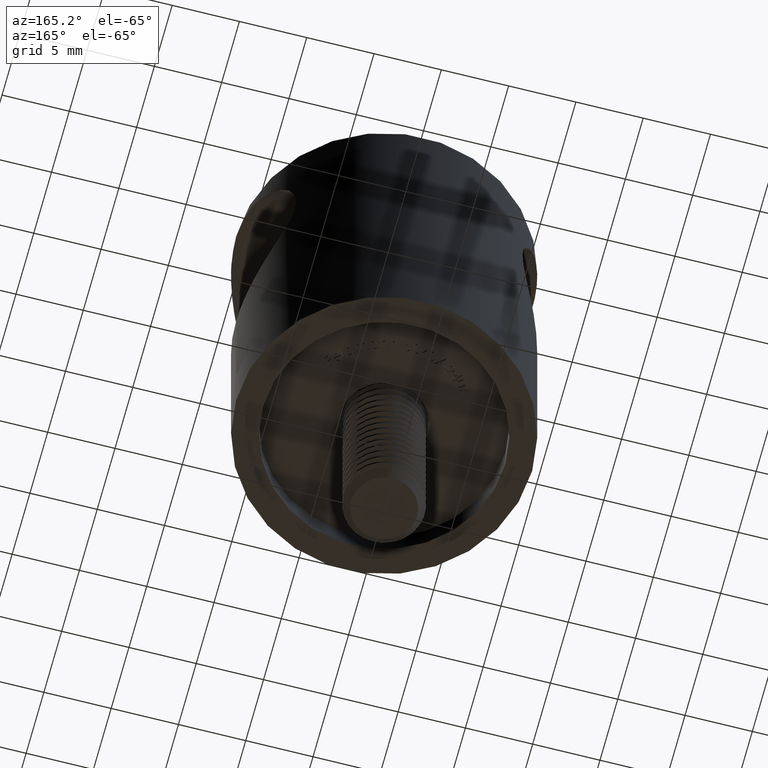
[diagram: clean part render]
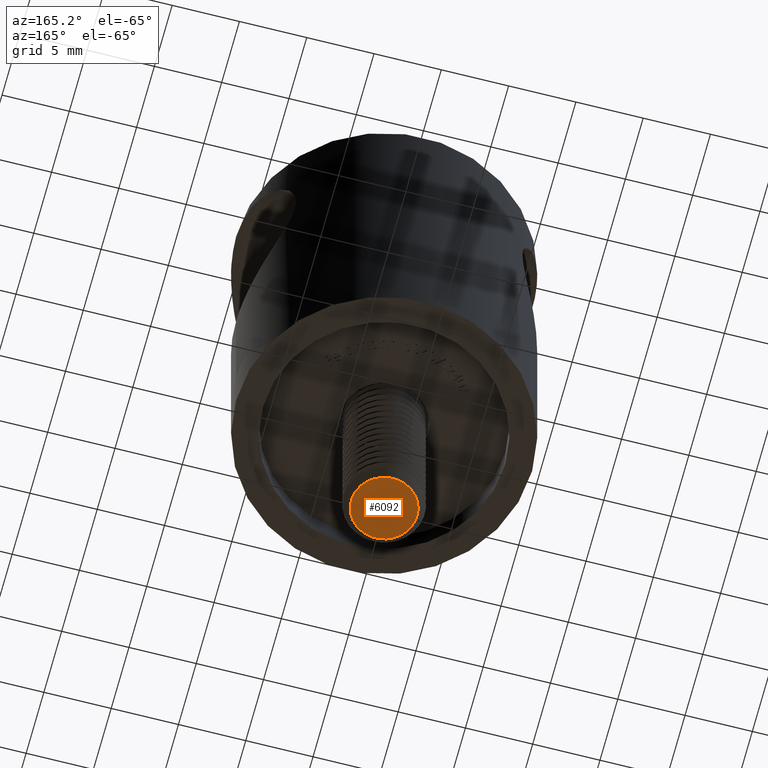
[diagram: same view with one face highlighted and labeled with its STEP entity id]
A machine part, auxiliary view. The second image highlights one B-rep face of the part: STEP entity #6092.
In plain terms, the highlighted planar face has unit normal (0, 0, -1).
Its self-contained STEP definition (entity closure, byte-faithful):
#1766 = EDGE_LOOP ( 'NONE', ( #5624 ) ) ;
#2318 = EDGE_CURVE ( 'NONE', #11272, #11272, #11658, .T. ) ;
#3540 = DIRECTION ( 'NONE',  ( 1.000000000000000000, 0.0000000000000000000, 0.0000000000000000000 ) ) ;
#5624 = ORIENTED_EDGE ( 'NONE', *, *, #2318, .F. ) ;
#6092 = ADVANCED_FACE ( 'NONE', ( #15762 ), #13788, .T. ) ;
#8254 = CARTESIAN_POINT ( 'NONE',  ( 25.00000000000000000, 0.0000000000000000000, 0.0000000000000000000 ) ) ;
#8808 = DIRECTION ( 'NONE',  ( 0.0000000000000000000, 0.0000000000000000000, -1.000000000000000000 ) ) ;
#11272 = VERTEX_POINT ( 'NONE', #21354 ) ;
#11658 = CIRCLE ( 'NONE', #21671, 2.445500000000000000 ) ;
#13788 = PLANE ( 'NONE',  #14306 ) ;
#14306 = AXIS2_PLACEMENT_3D ( 'NONE', #18821, #3540, #8808 ) ;
#14619 = DIRECTION ( 'NONE',  ( 0.0000000000000000000, 0.0000000000000000000, 1.000000000000000000 ) ) ;
#15762 = FACE_OUTER_BOUND ( 'NONE', #1766, .T. ) ;
#16569 = DIRECTION ( 'NONE',  ( -1.000000000000000000, -0.0000000000000000000, -0.0000000000000000000 ) ) ;
#18821 = CARTESIAN_POINT ( 'NONE',  ( 25.00000000000000000, 2.445500000000000000, 0.0000000000000000000 ) ) ;
#21354 = CARTESIAN_POINT ( 'NONE',  ( 25.00000000000000000, 0.0000000000000000000, 2.445500000000000000 ) ) ;
#21671 = AXIS2_PLACEMENT_3D ( 'NONE', #8254, #16569, #14619 ) ;